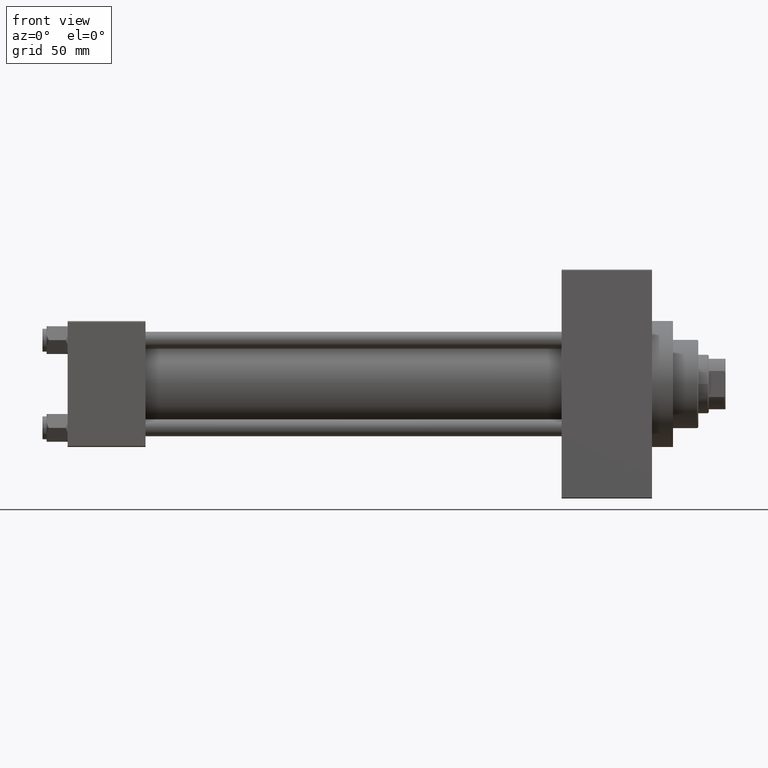
[diagram: clean part render]
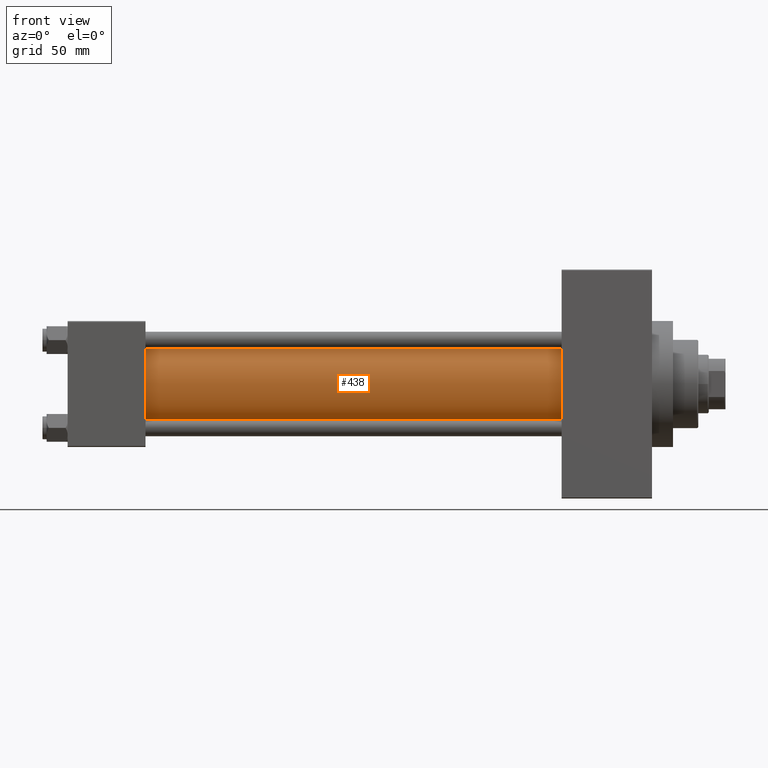
[diagram: same view with one face highlighted and labeled with its STEP entity id]
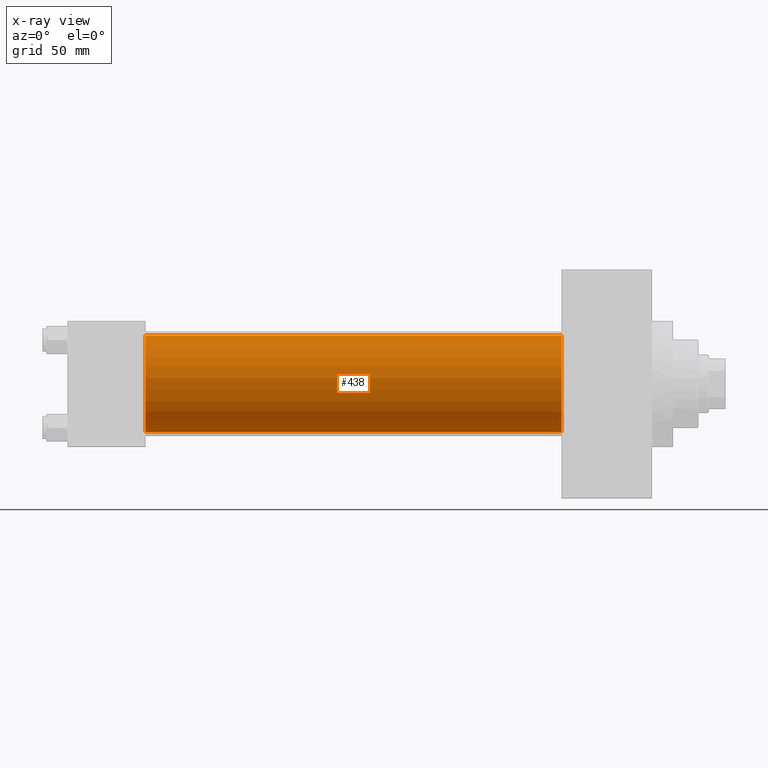
[diagram: x-ray of the same camera — body ghosted, the highlighted face saturated]
A machine part, front view. The second image highlights one B-rep face of the part: STEP entity #438.
The next image is the same camera in x-ray: the body ghosted, the highlighted face saturated — about 0% of this face is hidden behind the body in this view.
In plain terms, the highlighted cylindrical surface (partial cylindrical patch) has radius 23 mm, axis along (-1, -0, -0).
Its self-contained STEP definition (entity closure, byte-faithful):
#438 = ADVANCED_FACE ( 'NONE', ( #24372 ), #34952, .T. ) ;
#2541 = EDGE_CURVE ( 'NONE', #24524, #30530, #15171, .T. ) ;
#3719 = DIRECTION ( 'NONE',  ( 0.000000000000000000, 0.000000000000000000, 1.000000000000000000 ) ) ;
#4487 = CARTESIAN_POINT ( 'NONE',  ( 235.0000000000000284, -2.602085213965210642E-15, 0.000000000000000000 ) ) ;
#6048 = CARTESIAN_POINT ( 'NONE',  ( 37.00000000000000711, -2.602085213965210642E-15, 23.00000000000000000 ) ) ;
#7059 = EDGE_CURVE ( 'NONE', #36566, #30530, #25823, .T. ) ;
#8773 = EDGE_CURVE ( 'NONE', #34120, #24524, #47119, .T. ) ;
#9712 = CIRCLE ( 'NONE', #35810, 23.00000000000000000 ) ;
#13485 = CARTESIAN_POINT ( 'NONE',  ( 235.0000000000000284, -2.602085213965210642E-15, 23.00000000000000000 ) ) ;
#14409 = AXIS2_PLACEMENT_3D ( 'NONE', #18381, #21514, #3719 ) ;
#15171 = CIRCLE ( 'NONE', #14409, 23.00000000000000000 ) ;
#16758 = CARTESIAN_POINT ( 'NONE',  ( 235.0000000000000284, 2.146024240737016609E-16, -23.00000000000000000 ) ) ;
#17877 = ORIENTED_EDGE ( 'NONE', *, *, #2541, .T. ) ;
#17892 = CARTESIAN_POINT ( 'NONE',  ( 235.0000000000000284, 2.146024240737016609E-16, -23.00000000000000000 ) ) ;
#18381 = CARTESIAN_POINT ( 'NONE',  ( 37.00000000000000711, -2.602085213965210642E-15, 0.000000000000000000 ) ) ;
#19250 = ORIENTED_EDGE ( 'NONE', *, *, #7059, .F. ) ;
#21514 = DIRECTION ( 'NONE',  ( 1.000000000000000000, -0.000000000000000000, 0.000000000000000000 ) ) ;
#24372 = FACE_OUTER_BOUND ( 'NONE', #33391, .T. ) ;
#24524 = VERTEX_POINT ( 'NONE', #6048 ) ;
#25823 = LINE ( 'NONE', #17892, #39108 ) ;
#29969 = DIRECTION ( 'NONE',  ( 1.000000000000000000, 0.000000000000000000, 0.000000000000000000 ) ) ;
#30530 = VERTEX_POINT ( 'NONE', #37501 ) ;
#32234 = CARTESIAN_POINT ( 'NONE',  ( 235.0000000000000284, -2.602085213965210642E-15, 23.00000000000000000 ) ) ;
#33035 = DIRECTION ( 'NONE',  ( -1.000000000000000000, -0.000000000000000000, -0.000000000000000000 ) ) ;
#33391 = EDGE_LOOP ( 'NONE', ( #19250, #46748, #41231, #17877 ) ) ;
#34120 = VERTEX_POINT ( 'NONE', #13485 ) ;
#34952 = CYLINDRICAL_SURFACE ( 'NONE', #35634, 23.00000000000000000 ) ;
#35429 = CARTESIAN_POINT ( 'NONE',  ( 235.0000000000000284, -2.602085213965210642E-15, 0.000000000000000000 ) ) ;
#35634 = AXIS2_PLACEMENT_3D ( 'NONE', #35429, #46016, #45528 ) ;
#35810 = AXIS2_PLACEMENT_3D ( 'NONE', #4487, #29969, #45107 ) ;
#36566 = VERTEX_POINT ( 'NONE', #16758 ) ;
#37501 = CARTESIAN_POINT ( 'NONE',  ( 37.00000000000000711, 2.146024240737016609E-16, -23.00000000000000000 ) ) ;
#39108 = VECTOR ( 'NONE', #33035, 1000.000000000000000 ) ;
#41231 = ORIENTED_EDGE ( 'NONE', *, *, #8773, .T. ) ;
#42223 = VECTOR ( 'NONE', #46888, 1000.000000000000000 ) ;
#45107 = DIRECTION ( 'NONE',  ( 0.000000000000000000, 0.000000000000000000, -1.000000000000000000 ) ) ;
#45528 = DIRECTION ( 'NONE',  ( 0.000000000000000000, 0.000000000000000000, 1.000000000000000000 ) ) ;
#45917 = EDGE_CURVE ( 'NONE', #34120, #36566, #9712, .T. ) ;
#46016 = DIRECTION ( 'NONE',  ( -1.000000000000000000, -0.000000000000000000, -0.000000000000000000 ) ) ;
#46748 = ORIENTED_EDGE ( 'NONE', *, *, #45917, .F. ) ;
#46888 = DIRECTION ( 'NONE',  ( -1.000000000000000000, -0.000000000000000000, -0.000000000000000000 ) ) ;
#47119 = LINE ( 'NONE', #32234, #42223 ) ;